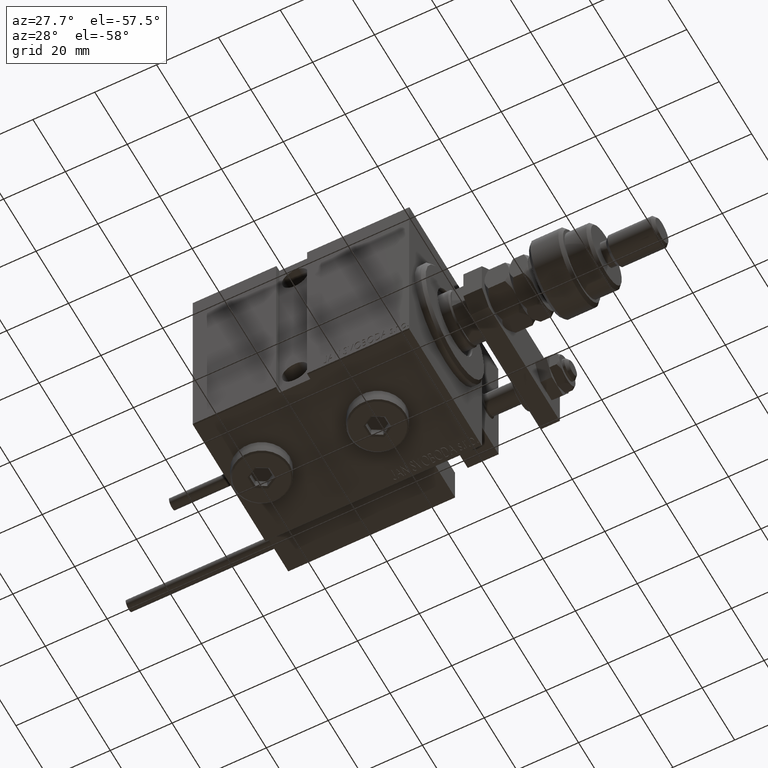
[diagram: clean part render]
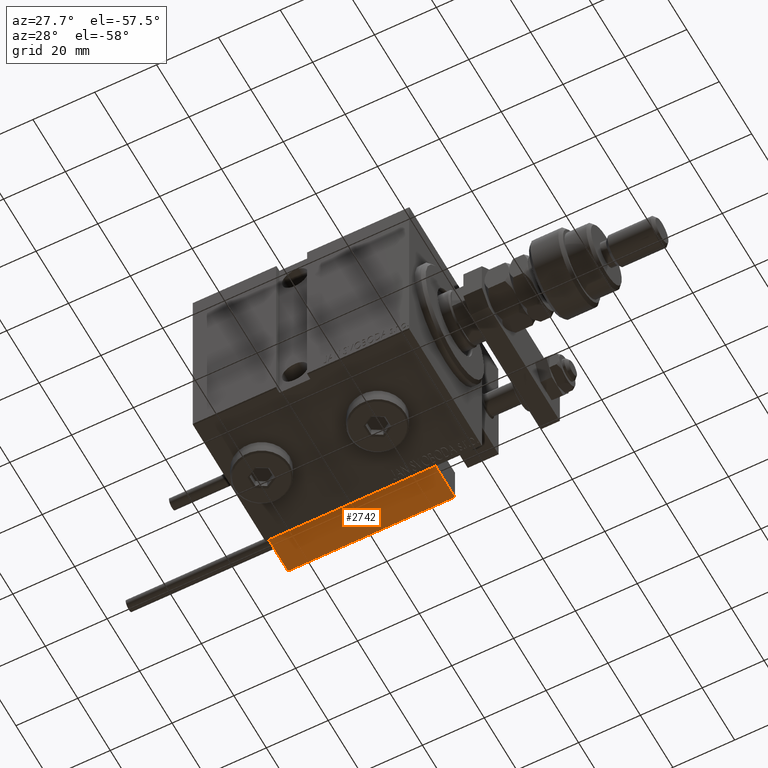
[diagram: same view with one face highlighted and labeled with its STEP entity id]
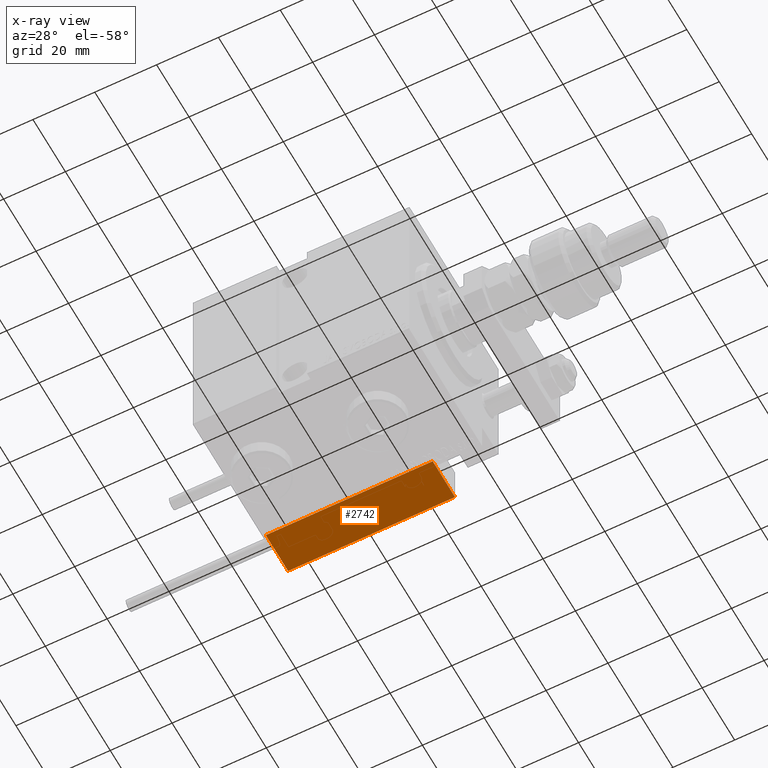
[diagram: x-ray of the same camera — body ghosted, the highlighted face saturated]
A machine part, auxiliary view. The second image highlights one B-rep face of the part: STEP entity #2742.
The next image is the same camera in x-ray: the body ghosted, the highlighted face saturated — about 0% of this face is hidden behind the body in this view.
In plain terms, the highlighted planar face has unit normal (-0, -0, 1).
Its self-contained STEP definition (entity closure, byte-faithful):
#1168 = CARTESIAN_POINT ( 'NONE',  ( 27.00000000000006395, 20.00000000000001776, 0.000000000000000000 ) ) ;
#2732 = LINE ( 'NONE', #24023, #16009 ) ;
#2742 = ADVANCED_FACE ( 'NONE', ( #24524 ), #20165, .F. ) ;
#6412 = CARTESIAN_POINT ( 'NONE',  ( -26.99999999999993605, 20.00000000000002132, 14.00000000000000000 ) ) ;
#8052 = ORIENTED_EDGE ( 'NONE', *, *, #10497, .T. ) ;
#10497 = EDGE_CURVE ( 'NONE', #40688, #50330, #48700, .T. ) ;
#11311 = VECTOR ( 'NONE', #34728, 1000.000000000000000 ) ;
#13572 = EDGE_CURVE ( 'NONE', #40688, #30033, #47877, .T. ) ;
#16009 = VECTOR ( 'NONE', #19919, 1000.000000000000000 ) ;
#17355 = CARTESIAN_POINT ( 'NONE',  ( -26.99999999999993605, 20.00000000000002132, 13.70000000000000107 ) ) ;
#18442 = CARTESIAN_POINT ( 'NONE',  ( 27.00000000000006395, 20.00000000000001776, 13.70000000000000107 ) ) ;
#19919 = DIRECTION ( 'NONE',  ( -0.000000000000000000, -0.000000000000000000, -1.000000000000000000 ) ) ;
#20165 = PLANE ( 'NONE',  #35152 ) ;
#23435 = EDGE_LOOP ( 'NONE', ( #31253, #8052, #24926, #31834 ) ) ;
#24023 = CARTESIAN_POINT ( 'NONE',  ( 27.00000000000006395, 20.00000000000001776, 14.00000000000000000 ) ) ;
#24524 = FACE_OUTER_BOUND ( 'NONE', #23435, .T. ) ;
#24926 = ORIENTED_EDGE ( 'NONE', *, *, #28968, .T. ) ;
#26716 = CARTESIAN_POINT ( 'NONE',  ( 27.00000000000006395, 20.00000000000001776, 13.70000000000000107 ) ) ;
#28871 = DIRECTION ( 'NONE',  ( -6.424901762877063495E-17, -1.000000000000000000, 0.000000000000000000 ) ) ;
#28968 = EDGE_CURVE ( 'NONE', #50330, #47135, #2732, .T. ) ;
#30033 = VERTEX_POINT ( 'NONE', #40700 ) ;
#31253 = ORIENTED_EDGE ( 'NONE', *, *, #13572, .F. ) ;
#31834 = ORIENTED_EDGE ( 'NONE', *, *, #39003, .T. ) ;
#32712 = DIRECTION ( 'NONE',  ( 1.000000000000000000, -6.424901762877063495E-17, 0.000000000000000000 ) ) ;
#32957 = VECTOR ( 'NONE', #40252, 1000.000000000000000 ) ;
#33607 = CARTESIAN_POINT ( 'NONE',  ( 27.00000000000006395, 20.00000000000001776, 0.000000000000000000 ) ) ;
#33961 = VECTOR ( 'NONE', #38621, 1000.000000000000000 ) ;
#34728 = DIRECTION ( 'NONE',  ( -1.000000000000000000, 6.424901762877062263E-17, 0.000000000000000000 ) ) ;
#35152 = AXIS2_PLACEMENT_3D ( 'NONE', #36812, #28871, #32712 ) ;
#36812 = CARTESIAN_POINT ( 'NONE',  ( 27.00000000000006395, 20.00000000000001776, 14.00000000000000000 ) ) ;
#38551 = LINE ( 'NONE', #1168, #11311 ) ;
#38621 = DIRECTION ( 'NONE',  ( -0.000000000000000000, -0.000000000000000000, -1.000000000000000000 ) ) ;
#39003 = EDGE_CURVE ( 'NONE', #47135, #30033, #38551, .T. ) ;
#40252 = DIRECTION ( 'NONE',  ( 1.000000000000000000, -6.424901762877063495E-17, -0.000000000000000000 ) ) ;
#40688 = VERTEX_POINT ( 'NONE', #17355 ) ;
#40700 = CARTESIAN_POINT ( 'NONE',  ( -26.99999999999993605, 20.00000000000002132, 0.000000000000000000 ) ) ;
#47135 = VERTEX_POINT ( 'NONE', #33607 ) ;
#47877 = LINE ( 'NONE', #6412, #33961 ) ;
#48700 = LINE ( 'NONE', #18442, #32957 ) ;
#50330 = VERTEX_POINT ( 'NONE', #26716 ) ;